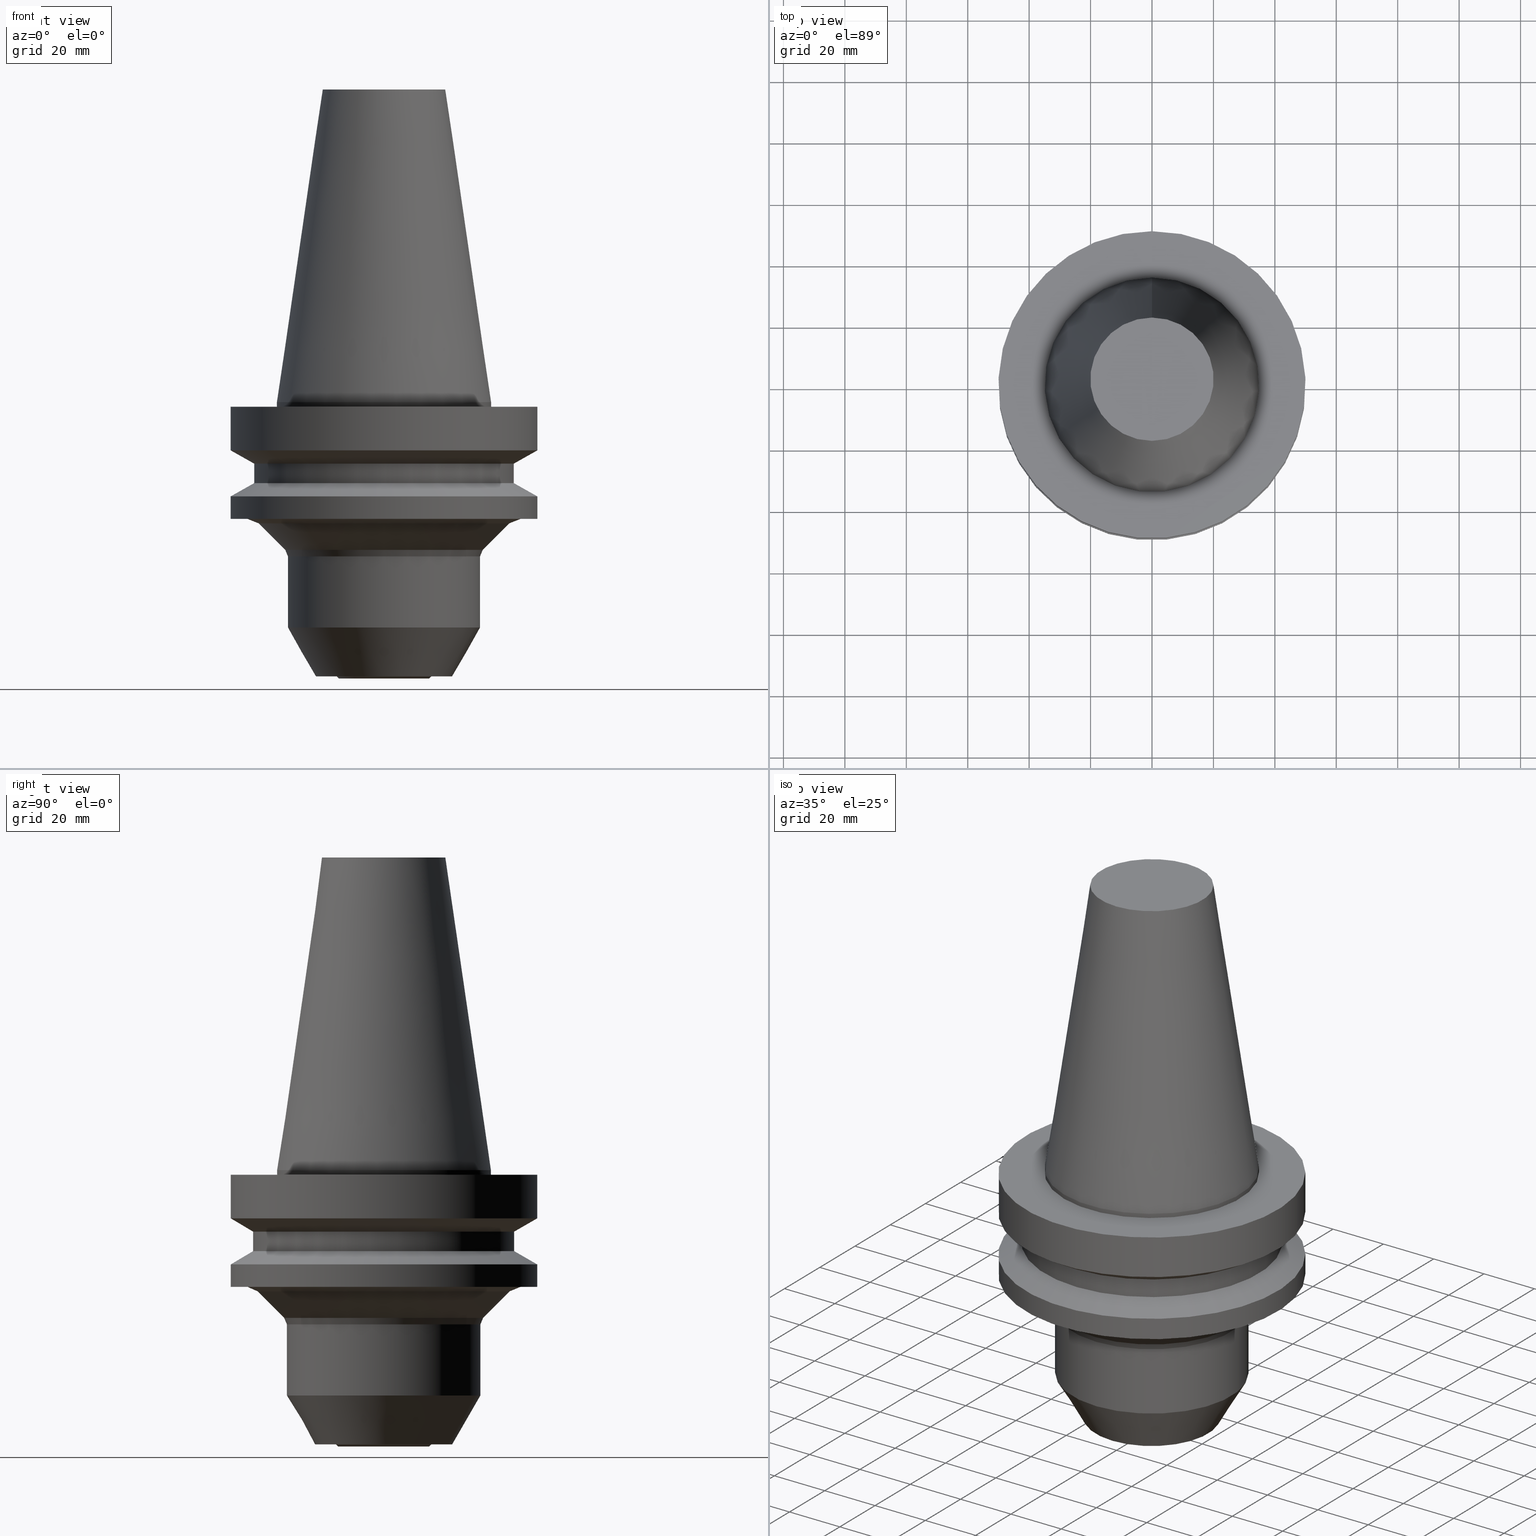
[diagram: canonical four-view strip — front | top / right | iso, engineering-drawing reading convention]
A machine part, canonical four-view strip (front | top / right | iso — engineering-drawing reading convention). The complete STEP part file that produces these views, byte-faithful:
ISO-10303-21;
HEADER;
FILE_DESCRIPTION((''),'1');
FILE_NAME('U:/Translate/BIG-HP/\X2\30C030A630F330ED30FC30C930C730FC30BF\X0\/201309/LINK\X2\7528FF83FF9EFF70FF80FF8EFF99FF80FF9E\X0\/CK\X2\FF8DFF6FFF84FF9E30FBFF71FF78FF7EFF7BFF98\X0\/11_CK\X2\8D85786CFF7DFF84FF9AFF70FF84FF7CFF6CFF9DFF78\X0\/02_CK\X2\8D85786C\X0\ST\X2\7528FF8AFF72FF84FF9EFF9BFF81FF6CFF6FFF78\X0\/BBT50-HDC24L-90.stp','2013-10-11T07:27:51',(''),(''),'Spatial Interop R18','Kubotek KeyCreator V8.5.1 (14335)',' ');
FILE_SCHEMA(('CONFIG_CONTROL_DESIGN'));
ENDSEC;
DATA;
#1=DESIGN_CONTEXT('',#27,'design');
#2=APPLICATION_PROTOCOL_DEFINITION('INTERNATIONAL STANDARD','config_control_design',1994,#27);
#3=PRODUCT_CATEGORY_RELATIONSHIP('NONE','NONE',#28,#29);
#4=DATE_AND_TIME(#30,#31);
#5=DATE_TIME_ROLE('creation_date');
#6=DATE_TIME_ROLE('classification_date');
#7=PERSON_AND_ORGANIZATION_ROLE('creator');
#8=PERSON_AND_ORGANIZATION_ROLE('design_supplier');
#9=PERSON_AND_ORGANIZATION_ROLE('classification_officer');
#10=PERSON_AND_ORGANIZATION_ROLE('design_owner');
#11=APPROVAL_PERSON_ORGANIZATION(#32,#33,#34);
#12=APPROVAL_DATE_TIME(#4,#33);
#13=CC_DESIGN_APPROVAL(#33,(#35,#36,#37));
#14=CC_DESIGN_DATE_AND_TIME_ASSIGNMENT(#4,#5,(#37));
#15=CC_DESIGN_DATE_AND_TIME_ASSIGNMENT(#4,#6,(#35));
#16=CC_DESIGN_PERSON_AND_ORGANIZATION_ASSIGNMENT(#32,#10,(#38));
#17=CC_DESIGN_PERSON_AND_ORGANIZATION_ASSIGNMENT(#32,#7,(#37));
#18=CC_DESIGN_PERSON_AND_ORGANIZATION_ASSIGNMENT(#32,#7,(#36));
#19=CC_DESIGN_PERSON_AND_ORGANIZATION_ASSIGNMENT(#32,#8,(#36));
#20=CC_DESIGN_SECURITY_CLASSIFICATION(#35,(#36));
#21=CC_DESIGN_PERSON_AND_ORGANIZATION_ASSIGNMENT(#32,#9,(#35));
#22=SHAPE_DEFINITION_REPRESENTATION(#39,#40);
#23= (GEOMETRIC_REPRESENTATION_CONTEXT(3)GLOBAL_UNCERTAINTY_ASSIGNED_CONTEXT((#43))GLOBAL_UNIT_ASSIGNED_CONTEXT((#45,#46,#47))REPRESENTATION_CONTEXT('NONE','WORKSPACE'));
#27=APPLICATION_CONTEXT('CONFIGURATION CONTROLLED 3D DESIGNS OF MECHANICAL PARTS AND ASSEMBLIES');
#28=PRODUCT_CATEGORY('part','NONE');
#29=PRODUCT_RELATED_PRODUCT_CATEGORY('detail',' ',(#38));
#30=CALENDAR_DATE(2013,11,9);
#31=LOCAL_TIME(16,27,51.0,#49);
#32=PERSON_AND_ORGANIZATION(#50,#51);
#33=APPROVAL(#52,'SOLID MODEL');
#34=APPROVAL_ROLE('APPROVED');
#35=SECURITY_CLASSIFICATION('','',#53);
#36=PRODUCT_DEFINITION_FORMATION_WITH_SPECIFIED_SOURCE(' ','NONE',#38,.NOT_KNOWN.);
#37=PRODUCT_DEFINITION('NONE','NONE',#36,#1);
#38=PRODUCT('1','1','PART-1-DESC',(#54));
#39=PRODUCT_DEFINITION_SHAPE('NONE','NONE',#37);
#40=ADVANCED_BREP_SHAPE_REPRESENTATION('1',(#55,#56),#23);
#43=UNCERTAINTY_MEASURE_WITH_UNIT(LENGTH_MEASURE(1.0E-006),#45,'','');
#45= (CONVERSION_BASED_UNIT('MILLIMETRE',#59)LENGTH_UNIT()NAMED_UNIT(#62));
#46= (NAMED_UNIT(#64)PLANE_ANGLE_UNIT()SI_UNIT($,.RADIAN.));
#47= (NAMED_UNIT(#64)SOLID_ANGLE_UNIT()SI_UNIT($,.STERADIAN.));
#49=COORDINATED_UNIVERSAL_TIME_OFFSET(9,0,.AHEAD.);
#50=PERSON('','UNSPECIFIED',$,$,$,$);
#51=ORGANIZATION('UNSPECIFIED','UNSPECIFIED','UNSPECIFIED');
#52=APPROVAL_STATUS('approved');
#53=SECURITY_CLASSIFICATION_LEVEL('unclassified');
#54=MECHANICAL_CONTEXT('',#27,'mechanical');
#55=MANIFOLD_SOLID_BREP('1',#70);
#56=AXIS2_PLACEMENT_3D('',#71,#72,#73);
#59=LENGTH_MEASURE_WITH_UNIT(LENGTH_MEASURE(1.0),#74);
#62=DIMENSIONAL_EXPONENTS(1.0,0.0,0.0,0.0,0.0,0.0,0.0);
#64=DIMENSIONAL_EXPONENTS(0.0,0.0,0.0,0.0,0.0,0.0,0.0);
#70=CLOSED_SHELL('',(#75,#76,#77,#78,#79,#80,#81,#82,#83,#84,#85,#86,#87,#88,#89,#90,#91,#92));
#71=CARTESIAN_POINT('',(0.0,0.0,0.0));
#72=DIRECTION('',(0.0,0.0,1.0));
#73=DIRECTION('',(1.0,0.0,0.0));
#74= (NAMED_UNIT(#62)LENGTH_UNIT()SI_UNIT(.MILLI.,.METRE.));
#75=ADVANCED_FACE('',(#94),#95,.T.);
#76=ADVANCED_FACE('',(#96,#97),#98,.T.);
#77=ADVANCED_FACE('',(#99,#100),#101,.T.);
#78=ADVANCED_FACE('',(#102,#103),#104,.T.);
#79=ADVANCED_FACE('',(#105,#106),#107,.T.);
#80=ADVANCED_FACE('',(#108,#109),#110,.T.);
#81=ADVANCED_FACE('',(#111,#112),#113,.T.);
#82=ADVANCED_FACE('',(#114,#115),#116,.T.);
#83=ADVANCED_FACE('',(#117,#118),#119,.T.);
#84=ADVANCED_FACE('',(#120,#121),#122,.T.);
#85=ADVANCED_FACE('',(#123,#124),#125,.T.);
#86=ADVANCED_FACE('',(#126,#127),#128,.T.);
#87=ADVANCED_FACE('',(#129,#130),#131,.T.);
#88=ADVANCED_FACE('',(#132,#133),#134,.T.);
#89=ADVANCED_FACE('',(#135,#136),#137,.T.);
#90=ADVANCED_FACE('',(#138,#139),#140,.T.);
#91=ADVANCED_FACE('',(#141,#142),#143,.T.);
#92=ADVANCED_FACE('',(#144),#145,.T.);
#94=FACE_OUTER_BOUND('',#146,.T.);
#95=PLANE('',#147);
#96=FACE_BOUND('',#148,.T.);
#97=FACE_BOUND('',#149,.T.);
#98=CONICAL_SURFACE('',#150,27.5020833333334,0.144812498238939);
#99=FACE_BOUND('',#151,.T.);
#100=FACE_BOUND('',#152,.T.);
#101=CYLINDRICAL_SURFACE('',#153,34.925);
#102=FACE_OUTER_BOUND('',#154,.T.);
#103=FACE_BOUND('',#155,.T.);
#104=PLANE('',#156);
#105=FACE_BOUND('',#157,.T.);
#106=FACE_BOUND('',#158,.T.);
#107=CYLINDRICAL_SURFACE('',#159,50.0);
#108=FACE_BOUND('',#160,.T.);
#109=FACE_BOUND('',#161,.T.);
#110=CONICAL_SURFACE('',#162,46.25,1.0471975511966);
#111=FACE_BOUND('',#163,.T.);
#112=FACE_BOUND('',#164,.T.);
#113=CYLINDRICAL_SURFACE('',#165,42.5);
#114=FACE_BOUND('',#166,.T.);
#115=FACE_BOUND('',#167,.T.);
#116=CONICAL_SURFACE('',#168,46.25,1.0471975511966);
#117=FACE_BOUND('',#169,.T.);
#118=FACE_BOUND('',#170,.T.);
#119=CYLINDRICAL_SURFACE('',#171,50.0);
#120=FACE_BOUND('',#172,.T.);
#121=FACE_OUTER_BOUND('',#173,.T.);
#122=PLANE('',#174);
#123=FACE_BOUND('',#175,.T.);
#124=FACE_BOUND('',#176,.T.);
#125=CONICAL_SURFACE('',#177,42.8033008588975,1.17809724509639);
#126=FACE_BOUND('',#178,.T.);
#127=FACE_BOUND('',#179,.T.);
#128=CONICAL_SURFACE('',#180,36.7071067811855,0.785398163397443);
#129=FACE_BOUND('',#181,.T.);
#130=FACE_BOUND('',#182,.T.);
#131=CONICAL_SURFACE('',#183,31.9393398282197,0.392699081698717);
#132=FACE_BOUND('',#184,.T.);
#133=FACE_BOUND('',#185,.T.);
#134=CYLINDRICAL_SURFACE('',#186,31.5000000000001);
#135=FACE_BOUND('',#187,.T.);
#136=FACE_BOUND('',#188,.T.);
#137=CONICAL_SURFACE('',#189,26.9000000000004,0.523598775598279);
#138=FACE_BOUND('',#190,.T.);
#139=FACE_OUTER_BOUND('',#191,.T.);
#140=PLANE('',#192);
#141=FACE_BOUND('',#193,.T.);
#142=FACE_BOUND('',#194,.T.);
#143=CONICAL_SURFACE('',#195,15.1499999999952,0.785398163416337);
#144=FACE_OUTER_BOUND('',#196,.T.);
#145=PLANE('',#197);
#146=EDGE_LOOP('',(#198));
#147=AXIS2_PLACEMENT_3D('',#199,#200,#201);
#148=EDGE_LOOP('',(#202));
#149=EDGE_LOOP('',(#203));
#150=AXIS2_PLACEMENT_3D('',#204,#205,#206);
#151=EDGE_LOOP('',(#207));
#152=EDGE_LOOP('',(#208));
#153=AXIS2_PLACEMENT_3D('',#209,#210,#211);
#154=EDGE_LOOP('',(#212));
#155=EDGE_LOOP('',(#213));
#156=AXIS2_PLACEMENT_3D('',#214,#215,#216);
#157=EDGE_LOOP('',(#217));
#158=EDGE_LOOP('',(#218));
#159=AXIS2_PLACEMENT_3D('',#219,#220,#221);
#160=EDGE_LOOP('',(#222));
#161=EDGE_LOOP('',(#223));
#162=AXIS2_PLACEMENT_3D('',#224,#225,#226);
#163=EDGE_LOOP('',(#227));
#164=EDGE_LOOP('',(#228));
#165=AXIS2_PLACEMENT_3D('',#229,#230,#231);
#166=EDGE_LOOP('',(#232));
#167=EDGE_LOOP('',(#233));
#168=AXIS2_PLACEMENT_3D('',#234,#235,#236);
#169=EDGE_LOOP('',(#237));
#170=EDGE_LOOP('',(#238));
#171=AXIS2_PLACEMENT_3D('',#239,#240,#241);
#172=EDGE_LOOP('',(#242));
#173=EDGE_LOOP('',(#243));
#174=AXIS2_PLACEMENT_3D('',#244,#245,#246);
#175=EDGE_LOOP('',(#247));
#176=EDGE_LOOP('',(#248));
#177=AXIS2_PLACEMENT_3D('',#249,#250,#251);
#178=EDGE_LOOP('',(#252));
#179=EDGE_LOOP('',(#253));
#180=AXIS2_PLACEMENT_3D('',#254,#255,#256);
#181=EDGE_LOOP('',(#257));
#182=EDGE_LOOP('',(#258));
#183=AXIS2_PLACEMENT_3D('',#259,#260,#261);
#184=EDGE_LOOP('',(#262));
#185=EDGE_LOOP('',(#263));
#186=AXIS2_PLACEMENT_3D('',#264,#265,#266);
#187=EDGE_LOOP('',(#267));
#188=EDGE_LOOP('',(#268));
#189=AXIS2_PLACEMENT_3D('',#269,#270,#271);
#190=EDGE_LOOP('',(#272));
#191=EDGE_LOOP('',(#273));
#192=AXIS2_PLACEMENT_3D('',#274,#275,#276);
#193=EDGE_LOOP('',(#277));
#194=EDGE_LOOP('',(#278));
#195=AXIS2_PLACEMENT_3D('',#279,#280,#281);
#196=EDGE_LOOP('',(#282));
#197=AXIS2_PLACEMENT_3D('',#283,#284,#285);
#198=ORIENTED_EDGE('',*,*,#286,.F.);
#199=CARTESIAN_POINT('',(-6.23345220766003E-015,10.0395833333334,101.8));
#200=DIRECTION('',(-6.12323399573677E-017,-1.22464679914735E-016,1.0));
#201=DIRECTION('',(1.23259516440783E-032,-1.0,-1.22464679914735E-016));
#202=ORIENTED_EDGE('',*,*,#287,.F.);
#203=ORIENTED_EDGE('',*,*,#286,.T.);
#204=CARTESIAN_POINT('',(-3.11672610383001E-015,2.5138379520964E-015,50.9));
#205=DIRECTION('',(6.12323399573677E-017,6.1434083365827E-017,-1.0));
#206=DIRECTION('',(-8.58890540839761E-033,1.0,6.1434083365827E-017));
#207=ORIENTED_EDGE('',*,*,#288,.F.);
#208=ORIENTED_EDGE('',*,*,#287,.T.);
#209=CARTESIAN_POINT('',(4.59242549680257E-017,5.68690835794415E-015,-0.75));
#210=DIRECTION('',(-6.12323399573677E-017,-6.14340833658914E-017,1.0));
#211=DIRECTION('',(-8.58890540840407E-033,1.0,6.14340833658914E-017));
#212=ORIENTED_EDGE('',*,*,#289,.F.);
#213=ORIENTED_EDGE('',*,*,#288,.T.);
#214=CARTESIAN_POINT('',(9.18485099360522E-017,42.4625,-1.50000000000002));
#215=DIRECTION('',(-6.12323399573677E-017,1.04115215518161E-015,1.0));
#216=DIRECTION('',(-5.89250299826576E-032,-1.0,1.04115215518161E-015));
#217=ORIENTED_EDGE('',*,*,#290,.F.);
#218=ORIENTED_EDGE('',*,*,#289,.T.);
#219=CARTESIAN_POINT('',(5.26598123633362E-016,6.16916591236632E-015,-8.59999999999999));
#220=DIRECTION('',(-6.12323399573677E-017,-6.14340833658324E-017,1.0));
#221=DIRECTION('',(-8.58890540840134E-033,1.0,6.14340833658324E-017));
#222=ORIENTED_EDGE('',*,*,#291,.F.);
#223=ORIENTED_EDGE('',*,*,#290,.T.);
#224=CARTESIAN_POINT('',(1.09391964217128E-015,6.73835659639673E-015,-17.8650635094611));
#225=DIRECTION('',(-6.12323399573677E-017,-6.14340833658255E-017,1.0));
#226=DIRECTION('',(-8.58890540839591E-033,1.0,6.14340833658255E-017));
#227=ORIENTED_EDGE('',*,*,#292,.F.);
#228=ORIENTED_EDGE('',*,*,#291,.T.);
#229=CARTESIAN_POINT('',(1.42059028701093E-015,7.06610352950818E-015,-23.2));
#230=DIRECTION('',(-6.12323399573677E-017,-6.14340833658172E-017,1.0));
#231=DIRECTION('',(-8.58890540838952E-033,1.0,6.14340833658172E-017));
#232=ORIENTED_EDGE('',*,*,#293,.F.);
#233=ORIENTED_EDGE('',*,*,#292,.T.);
#234=CARTESIAN_POINT('',(1.74726093185057E-015,7.39385046261962E-015,-28.5349364905389));
#235=DIRECTION('',(6.12323399573677E-017,6.14340833658255E-017,-1.0));
#236=DIRECTION('',(-8.58890540839591E-033,1.0,6.14340833658255E-017));
#237=ORIENTED_EDGE('',*,*,#294,.F.);
#238=ORIENTED_EDGE('',*,*,#293,.T.);
#239=CARTESIAN_POINT('',(2.10333087753558E-015,7.75109355903775E-015,-34.35));
#240=DIRECTION('',(-6.12323399573677E-017,-6.14340833658324E-017,1.0));
#241=DIRECTION('',(-8.58890540840134E-033,1.0,6.14340833658324E-017));
#242=ORIENTED_EDGE('',*,*,#295,.F.);
#243=ORIENTED_EDGE('',*,*,#294,.T.);
#244=CARTESIAN_POINT('',(2.32682891837997E-015,47.2855339059319,-38.0));
#245=DIRECTION('',(6.12323399573677E-017,1.19017324994974E-014,-1.0));
#246=DIRECTION('',(-7.33598083221643E-031,1.0,1.19017324994974E-014));
#247=ORIENTED_EDGE('',*,*,#296,.F.);
#248=ORIENTED_EDGE('',*,*,#295,.T.);
#249=CARTESIAN_POINT('',(2.37166526124393E-015,8.02031202937791E-015,-38.7322330470332));
#250=DIRECTION('',(-6.12323399573677E-017,-6.14340833659414E-017,1.0));
#251=DIRECTION('',(-8.58890540841378E-033,1.0,6.14340833659414E-017));
#252=ORIENTED_EDGE('',*,*,#297,.F.);
#253=ORIENTED_EDGE('',*,*,#296,.T.);
#254=CARTESIAN_POINT('',(2.681541325291E-015,8.33120904825736E-015,-43.7928932188121));
#255=DIRECTION('',(-6.12323399573677E-017,-6.14340833659059E-017,1.0));
#256=DIRECTION('',(-8.58890540840594E-033,1.0,6.14340833659059E-017));
#257=ORIENTED_EDGE('',*,*,#298,.F.);
#258=ORIENTED_EDGE('',*,*,#297,.T.);
#259=CARTESIAN_POINT('',(3.01152775069179E-015,8.66228268649813E-015,-49.1819805153376));
#260=DIRECTION('',(-6.12323399573677E-017,-6.14340833658534E-017,1.0));
#261=DIRECTION('',(-8.5889054083989E-033,1.0,6.14340833658534E-017));
#262=ORIENTED_EDGE('',*,*,#299,.F.);
#263=ORIENTED_EDGE('',*,*,#298,.T.);
#264=CARTESIAN_POINT('',(3.78439659673765E-015,9.43769791890524E-015,-61.8038866287405));
#265=DIRECTION('',(-6.12323399573677E-017,-6.14340833658364E-017,1.0));
#266=DIRECTION('',(-8.58890540839311E-033,1.0,6.14340833658364E-017));
#267=ORIENTED_EDGE('',*,*,#300,.F.);
#268=ORIENTED_EDGE('',*,*,#299,.T.);
#269=CARTESIAN_POINT('',(4.98018334837936E-015,1.06374244529446E-014,-81.3325662851813));
#270=DIRECTION('',(-6.12323399573676E-017,-6.14340833659161E-017,1.0));
#271=DIRECTION('',(-8.58890540839892E-033,1.0,6.14340833659161E-017));
#272=ORIENTED_EDGE('',*,*,#301,.F.);
#273=ORIENTED_EDGE('',*,*,#300,.T.);
#274=CARTESIAN_POINT('',(5.46804795819287E-015,18.9000000000042,-89.299999999999));
#275=DIRECTION('',(6.12323399573677E-017,-1.24165247746906E-014,-1.0));
#276=DIRECTION('',(7.55465713362163E-031,1.0,-1.24165247746906E-014));
#277=ORIENTED_EDGE('',*,*,#302,.F.);
#278=ORIENTED_EDGE('',*,*,#301,.T.);
#279=CARTESIAN_POINT('',(5.48947927717795E-015,1.11483983691709E-014,-89.6499999999989));
#280=DIRECTION('',(-6.12323399573677E-017,-6.14340833659212E-017,1.0));
#281=DIRECTION('',(-8.58890540840214E-033,1.0,6.14340833659212E-017));
#282=ORIENTED_EDGE('',*,*,#302,.T.);
#283=CARTESIAN_POINT('',(5.51091059616302E-015,7.399999999991,-89.9999999999989));
#284=DIRECTION('',(6.12323399573677E-017,1.22464679914735E-016,-1.0));
#285=DIRECTION('',(-1.23259516440783E-032,1.0,1.22464679914735E-016));
#286=EDGE_CURVE('',#303,#303,#304,.T.);
#287=EDGE_CURVE('',#305,#305,#306,.T.);
#288=EDGE_CURVE('',#307,#307,#308,.T.);
#289=EDGE_CURVE('',#309,#309,#310,.T.);
#290=EDGE_CURVE('',#311,#311,#312,.T.);
#291=EDGE_CURVE('',#313,#313,#314,.T.);
#292=EDGE_CURVE('',#315,#315,#316,.T.);
#293=EDGE_CURVE('',#317,#317,#318,.T.);
#294=EDGE_CURVE('',#319,#319,#320,.T.);
#295=EDGE_CURVE('',#321,#321,#322,.T.);
#296=EDGE_CURVE('',#323,#323,#324,.T.);
#297=EDGE_CURVE('',#325,#325,#326,.T.);
#298=EDGE_CURVE('',#327,#327,#328,.T.);
#299=EDGE_CURVE('',#329,#329,#330,.T.);
#300=EDGE_CURVE('',#331,#331,#332,.T.);
#301=EDGE_CURVE('',#333,#333,#334,.T.);
#302=EDGE_CURVE('',#335,#335,#336,.T.);
#303=VERTEX_POINT('',#337);
#304=CIRCLE('',#338,20.0791666666667);
#305=VERTEX_POINT('',#339);
#306=CIRCLE('',#340,34.925);
#307=VERTEX_POINT('',#341);
#308=CIRCLE('',#342,34.925);
#309=VERTEX_POINT('',#343);
#310=CIRCLE('',#344,50.0);
#311=VERTEX_POINT('',#345);
#312=CIRCLE('',#346,50.0);
#313=VERTEX_POINT('',#347);
#314=CIRCLE('',#348,42.5);
#315=VERTEX_POINT('',#349);
#316=CIRCLE('',#350,42.5);
#317=VERTEX_POINT('',#351);
#318=CIRCLE('',#352,50.0);
#319=VERTEX_POINT('',#353);
#320=CIRCLE('',#354,50.0);
#321=VERTEX_POINT('',#355);
#322=CIRCLE('',#356,44.5710678118638);
#323=VERTEX_POINT('',#357);
#324=CIRCLE('',#358,41.0355339059312);
#325=VERTEX_POINT('',#359);
#326=CIRCLE('',#360,32.3786796564399);
#327=VERTEX_POINT('',#361);
#328=CIRCLE('',#362,31.4999999999995);
#329=VERTEX_POINT('',#363);
#330=CIRCLE('',#364,31.5000000000007);
#331=VERTEX_POINT('',#365);
#332=CIRCLE('',#366,22.3000000000001);
#333=VERTEX_POINT('',#367);
#334=CIRCLE('',#368,15.5000000000084);
#335=VERTEX_POINT('',#369);
#336=CIRCLE('',#370,14.799999999982);
#337=CARTESIAN_POINT('',(-6.23345220766003E-015,20.0791666666667,101.8));
#338=AXIS2_PLACEMENT_3D('',#371,#372,#373);
#339=CARTESIAN_POINT('',(-4.30483861169436E-031,34.925,4.27707894602214E-015));
#340=AXIS2_PLACEMENT_3D('',#374,#375,#376);
#341=CARTESIAN_POINT('',(9.18485099360518E-017,34.925,-1.50000000000001));
#342=AXIS2_PLACEMENT_3D('',#377,#378,#379);
#343=CARTESIAN_POINT('',(9.18485099360527E-017,50.0,-1.50000000000002));
#344=AXIS2_PLACEMENT_3D('',#380,#381,#382);
#345=CARTESIAN_POINT('',(9.61347737330669E-016,50.0,-15.7));
#346=AXIS2_PLACEMENT_3D('',#383,#384,#385);
#347=CARTESIAN_POINT('',(1.2264915470119E-015,42.5,-20.0301270189222));
#348=AXIS2_PLACEMENT_3D('',#386,#387,#388);
#349=CARTESIAN_POINT('',(1.61468902700996E-015,42.5,-26.3698729810777));
#350=AXIS2_PLACEMENT_3D('',#389,#390,#391);
#351=CARTESIAN_POINT('',(1.87983283669118E-015,50.0000000000001,-30.7));
#352=AXIS2_PLACEMENT_3D('',#392,#393,#394);
#353=CARTESIAN_POINT('',(2.32682891837997E-015,50.0000000000001,-38.0));
#354=AXIS2_PLACEMENT_3D('',#395,#396,#397);
#355=CARTESIAN_POINT('',(2.32682891837997E-015,44.5710678118639,-38.0));
#356=AXIS2_PLACEMENT_3D('',#398,#399,#400);
#357=CARTESIAN_POINT('',(2.41650160410788E-015,41.0355339059312,-39.4644660940664));
#358=AXIS2_PLACEMENT_3D('',#401,#402,#403);
#359=CARTESIAN_POINT('',(2.94658104647412E-015,32.3786796564399,-48.1213203435577));
#360=AXIS2_PLACEMENT_3D('',#404,#405,#406);
#361=CARTESIAN_POINT('',(3.07647445490945E-015,31.4999999999995,-50.2426406871175));
#362=AXIS2_PLACEMENT_3D('',#407,#408,#409);
#363=CARTESIAN_POINT('',(4.49231873856584E-015,31.5000000000007,-73.3651325703635));
#364=AXIS2_PLACEMENT_3D('',#410,#411,#412);
#365=CARTESIAN_POINT('',(5.46804795819287E-015,22.3000000000001,-89.299999999999));
#366=AXIS2_PLACEMENT_3D('',#413,#414,#415);
#367=CARTESIAN_POINT('',(5.46804795819287E-015,15.5000000000084,-89.2999999999989));
#368=AXIS2_PLACEMENT_3D('',#416,#417,#418);
#369=CARTESIAN_POINT('',(5.51091059616302E-015,14.799999999982,-89.9999999999989));
#370=AXIS2_PLACEMENT_3D('',#419,#420,#421);
#371=CARTESIAN_POINT('',(-6.23345220766003E-015,-6.13156891226943E-016,101.8));
#372=DIRECTION('',(6.12323399573677E-017,6.14340833658759E-017,-1.0));
#373=DIRECTION('',(-8.58890540839531E-033,1.0,6.14340833658759E-017));
#374=CARTESIAN_POINT('',(-6.95286322686748E-047,5.64083279541974E-015,6.9080278274362E-031));
#375=DIRECTION('',(6.12323399573677E-017,6.14340833658914E-017,-1.0));
#376=DIRECTION('',(-8.58890540840407E-033,1.0,6.14340833658914E-017));
#377=CARTESIAN_POINT('',(9.18485099360524E-017,5.73298392046856E-015,-1.50000000000001));
#378=DIRECTION('',(6.12323399573677E-017,6.14340833658914E-017,-1.0));
#379=DIRECTION('',(-8.58890540840407E-033,1.0,6.14340833658914E-017));
#380=CARTESIAN_POINT('',(9.18485099360532E-017,5.73298392046856E-015,-1.50000000000003));
#381=DIRECTION('',(6.12323399573677E-017,6.14340833658324E-017,-1.0));
#382=DIRECTION('',(-8.58890540840134E-033,1.0,6.14340833658324E-017));
#383=CARTESIAN_POINT('',(9.6134773733067E-016,6.60534790426407E-015,-15.7));
#384=DIRECTION('',(6.12323399573677E-017,6.14340833658324E-017,-1.0));
#385=DIRECTION('',(-8.58890540840134E-033,1.0,6.14340833658324E-017));
#386=CARTESIAN_POINT('',(1.2264915470119E-015,6.87136528852939E-015,-20.0301270189222));
#387=DIRECTION('',(6.12323399573677E-017,6.14340833658172E-017,-1.0));
#388=DIRECTION('',(-8.58890540838952E-033,1.0,6.14340833658172E-017));
#389=CARTESIAN_POINT('',(1.61468902700996E-015,7.26084177048696E-015,-26.3698729810777));
#390=DIRECTION('',(6.12323399573677E-017,6.14340833658172E-017,-1.0));
#391=DIRECTION('',(-8.58890540838952E-033,1.0,6.14340833658172E-017));
#392=CARTESIAN_POINT('',(1.87983283669118E-015,7.52685915475228E-015,-30.7));
#393=DIRECTION('',(6.12323399573677E-017,6.14340833658324E-017,-1.0));
#394=DIRECTION('',(-8.58890540840134E-033,1.0,6.14340833658324E-017));
#395=CARTESIAN_POINT('',(2.32682891837997E-015,7.97532796332322E-015,-38.0));
#396=DIRECTION('',(6.12323399573677E-017,6.14340833658324E-017,-1.0));
#397=DIRECTION('',(-8.58890540840134E-033,1.0,6.14340833658324E-017));
#398=CARTESIAN_POINT('',(2.32682891837997E-015,7.97532796332322E-015,-38.0000000000001));
#399=DIRECTION('',(6.12323399573677E-017,6.1434083365947E-017,-1.0));
#400=DIRECTION('',(-8.58890540840376E-033,1.0,6.1434083365947E-017));
#401=CARTESIAN_POINT('',(2.41650160410788E-015,8.0652960954326E-015,-39.4644660940664));
#402=DIRECTION('',(6.12323399573677E-017,6.14340833659352E-017,-1.0));
#403=DIRECTION('',(-8.58890540840719E-033,1.0,6.14340833659352E-017));
#404=CARTESIAN_POINT('',(2.94658104647412E-015,8.59712200108213E-015,-48.1213203435577));
#405=DIRECTION('',(6.12323399573677E-017,6.14340833658688E-017,-1.0));
#406=DIRECTION('',(-8.58890540839328E-033,1.0,6.14340833658688E-017));
#407=CARTESIAN_POINT('',(3.07647445490945E-015,8.72744337191412E-015,-50.2426406871175));
#408=DIRECTION('',(6.12323399573677E-017,6.14340833658375E-017,-1.0));
#409=DIRECTION('',(-8.58890540839328E-033,1.0,6.14340833658375E-017));
#410=CARTESIAN_POINT('',(4.49231873856584E-015,1.01479524658964E-014,-73.3651325703635));
#411=DIRECTION('',(6.12323399573677E-017,6.14340833658352E-017,-1.0));
#412=DIRECTION('',(-8.58890540839295E-033,1.0,6.14340833658352E-017));
#413=CARTESIAN_POINT('',(5.46804795819287E-015,1.11268964399929E-014,-89.299999999999));
#414=DIRECTION('',(6.12323399573676E-017,6.14340833658856E-017,-1.0));
#415=DIRECTION('',(-8.58890540839933E-033,1.0,6.14340833658856E-017));
#416=CARTESIAN_POINT('',(5.46804795819287E-015,1.11268964399928E-014,-89.2999999999989));
#417=DIRECTION('',(6.12323399573677E-017,6.14340833658994E-017,-1.0));
#418=DIRECTION('',(-8.58890540839925E-033,1.0,6.14340833658994E-017));
#419=CARTESIAN_POINT('',(5.51091059616302E-015,1.1169900298349E-014,-89.9999999999989));
#420=DIRECTION('',(6.12323399573677E-017,6.14340833658348E-017,-1.0));
#421=DIRECTION('',(-8.58890540839304E-033,1.0,6.14340833658348E-017));
ENDSEC;
END-ISO-10303-21;
